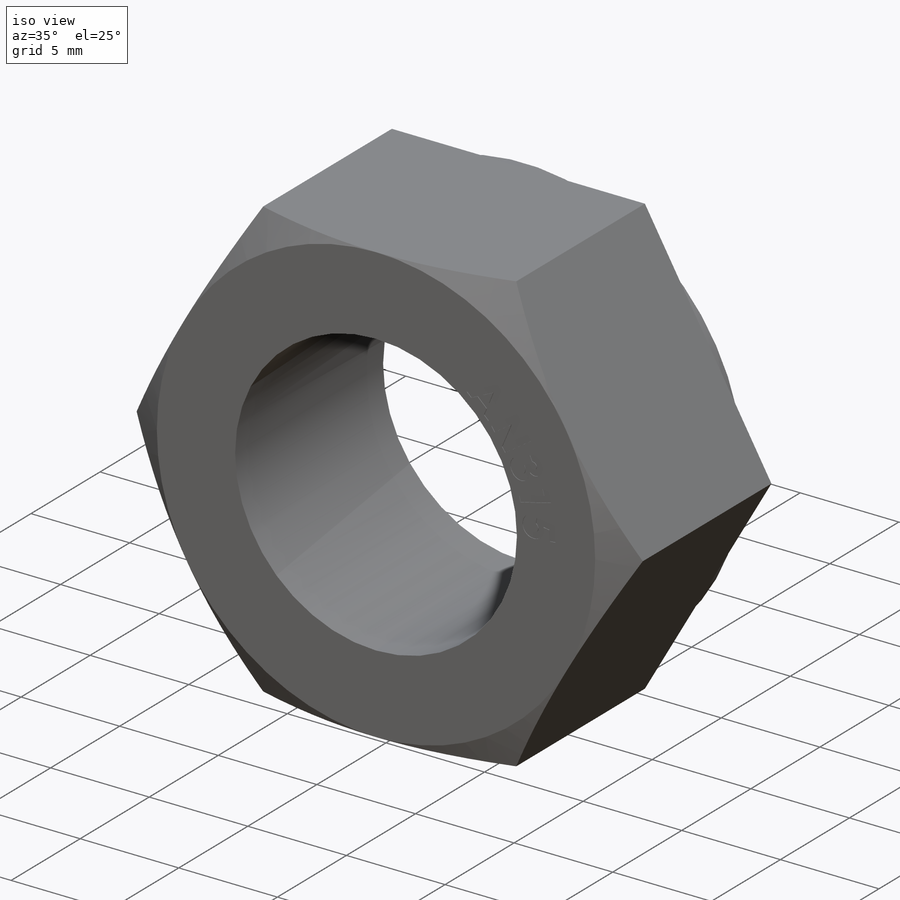
[diagram: iso view]
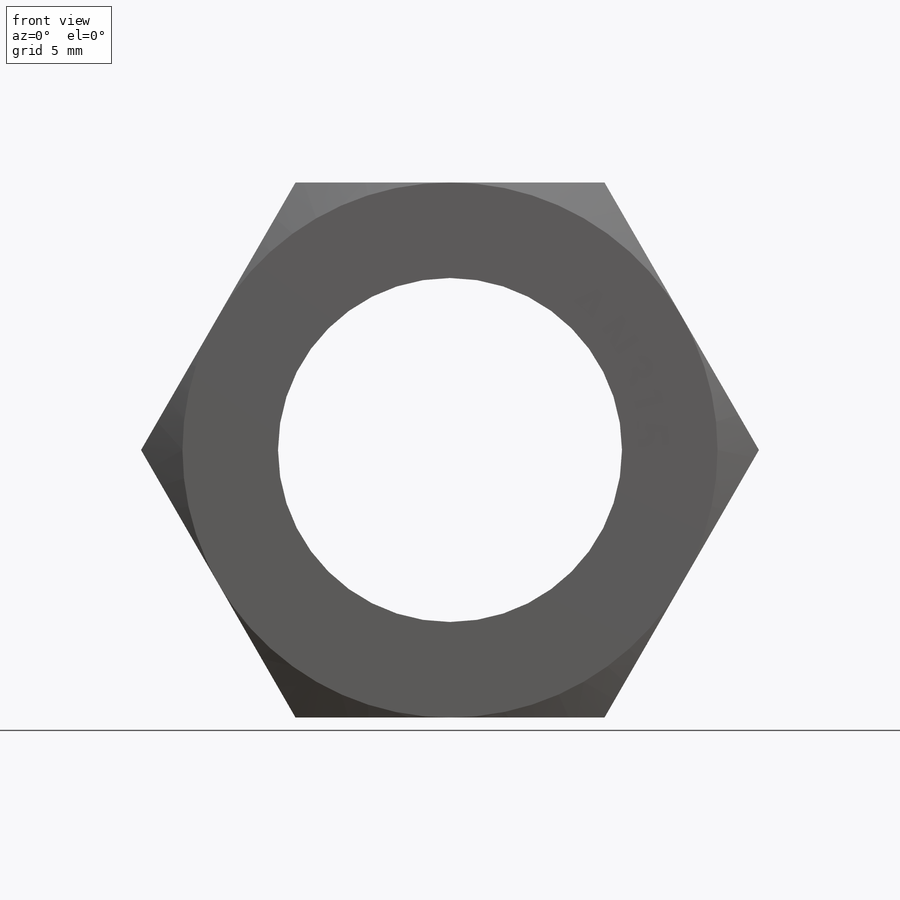
[diagram: front view]
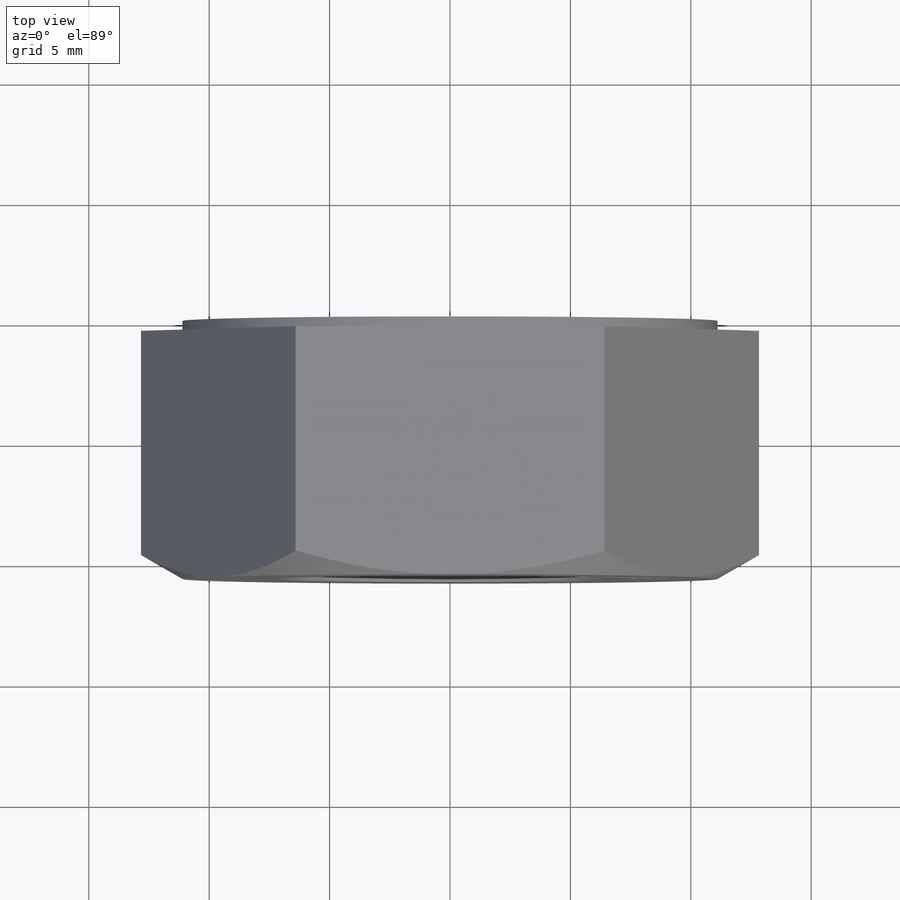
[diagram: top view]
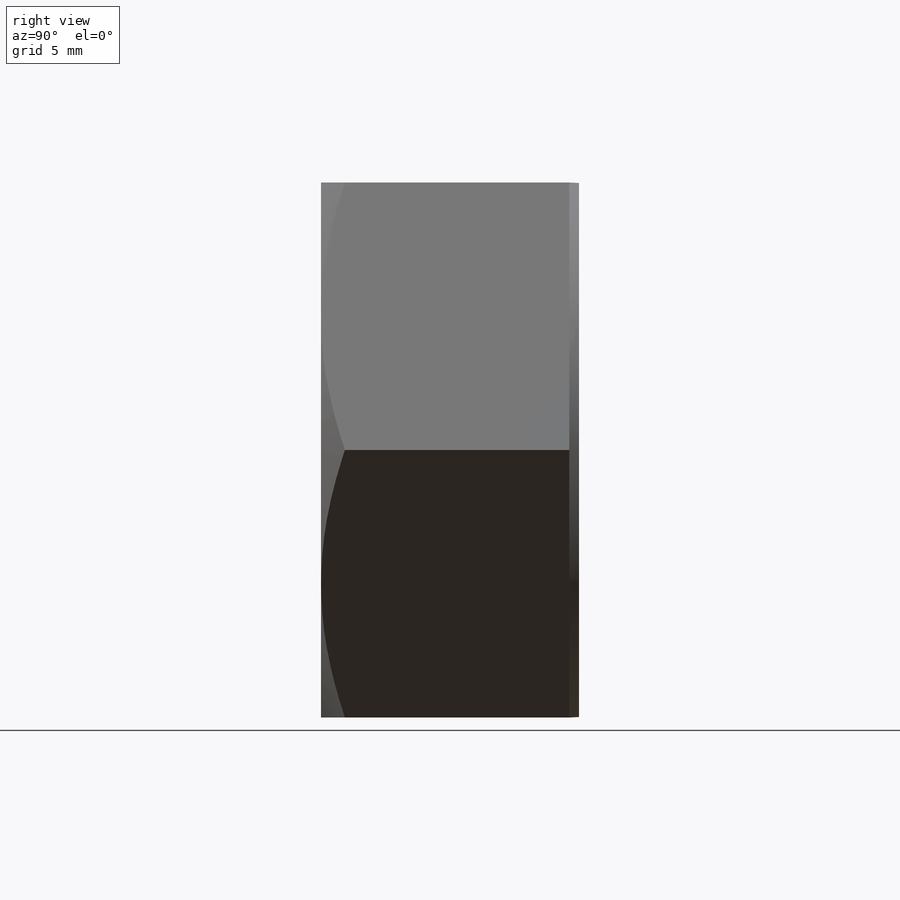
[diagram: right view]
SOLIDWORKS PART (.sldprt)
format: sldprt  version: not decoded by parser v0  size: 2,700,800 bytes
history: native  units: mm
features: sketch x5, cut_extrude x3, material x1, extrude x1 + 1 further entry (+12 scaffold rows collapsed)
feature tree (23):
  scaffold x12  (default folders/planes/origin — collapsed)
  material  "AISI 4130 Steel, normalized at 870C"
  "Design Table"
  sketch  "Sketch1"  dims[Diameter A=9.525mm T - Thread=4.7625mm]
  extrude  "Boss-Extrude1"  Depth=3.571875mm
  sketch  "Sketch2"
  cut_extrude  "Cut-Extrude1"  Depth=3.571875mm
  sketch  "Sketch3"
  sketch  "Sketch4"  dims[D1=0.381mm]
  cut_extrude  "Cut-Extrude2"  Depth=0.0254mm
  sketch  "Sketch6"
  cut_extrude  "Cut-Extrude4"  Depth=0.4064mm
decode coverage: 6 of 9 modeling features carry decoded parameters; 1 rows unclassified (native names shown)
note: suppression state not decoded; provenance and decode notes live in map.json
